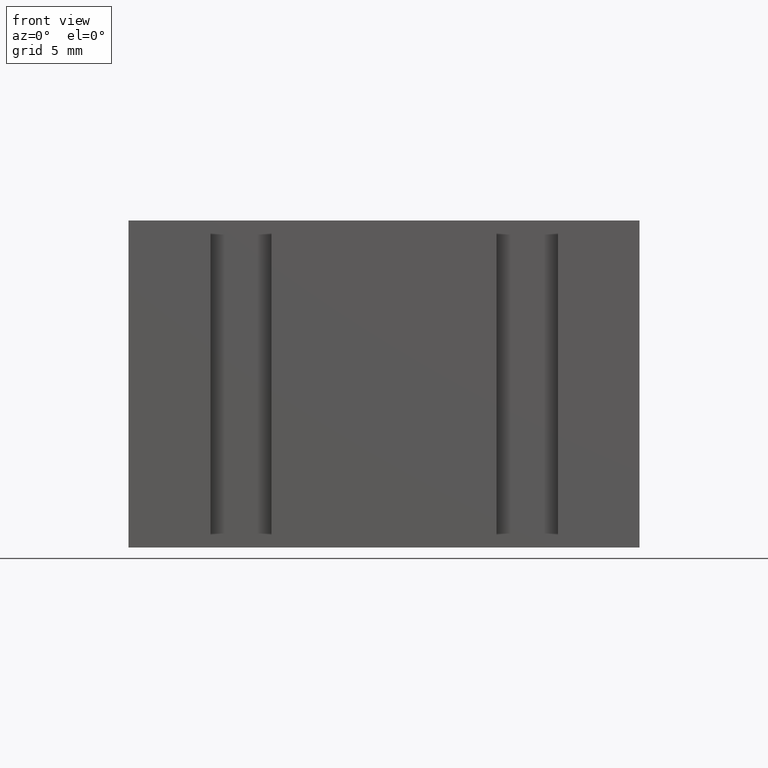
[diagram: clean part render]
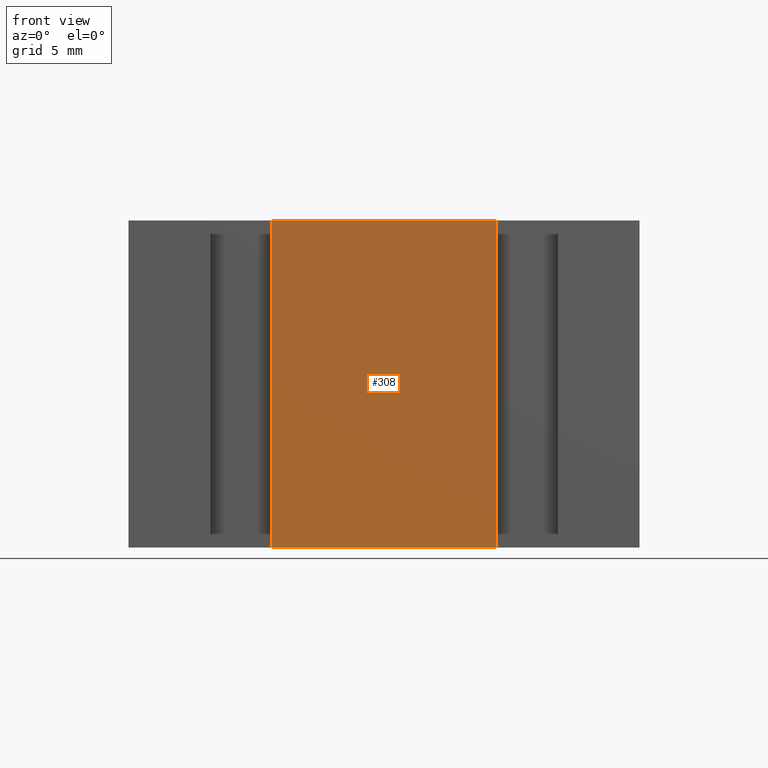
[diagram: same view with one face highlighted and labeled with its STEP entity id]
A machine part, front view. The second image highlights one B-rep face of the part: STEP entity #308.
In plain terms, the highlighted planar face has unit normal (0, -1, 0).
Its self-contained STEP definition (entity closure, byte-faithful):
#22=FACE_OUTER_BOUND('',#38,.T.);
#38=EDGE_LOOP('',(#230,#231,#232,#233));
#55=LINE('',#449,#97);
#70=LINE('',#478,#112);
#71=LINE('',#481,#113);
#72=LINE('',#482,#114);
#97=VECTOR('',#368,10.);
#112=VECTOR('',#389,10.);
#113=VECTOR('',#392,10.);
#114=VECTOR('',#393,10.);
#139=VERTEX_POINT('',#446);
#140=VERTEX_POINT('',#448);
#151=VERTEX_POINT('',#476);
#152=VERTEX_POINT('',#480);
#167=EDGE_CURVE('',#140,#139,#55,.T.);
#182=EDGE_CURVE('',#151,#139,#70,.T.);
#183=EDGE_CURVE('',#151,#152,#71,.T.);
#184=EDGE_CURVE('',#152,#140,#72,.T.);
#230=ORIENTED_EDGE('',*,*,#183,.T.);
#231=ORIENTED_EDGE('',*,*,#184,.T.);
#232=ORIENTED_EDGE('',*,*,#167,.T.);
#233=ORIENTED_EDGE('',*,*,#182,.F.);
#292=PLANE('',#347);
#308=ADVANCED_FACE('',(#22),#292,.T.);
#347=AXIS2_PLACEMENT_3D('',#479,#390,#391);
#368=DIRECTION('',(1.,0.,0.));
#389=DIRECTION('',(0.,0.,-1.));
#390=DIRECTION('center_axis',(0.,-1.,0.));
#391=DIRECTION('ref_axis',(0.,0.,-1.));
#392=DIRECTION('',(-1.,0.,0.));
#393=DIRECTION('',(0.,0.,-1.));
#446=CARTESIAN_POINT('',(5.5,0.,-8.));
#448=CARTESIAN_POINT('',(-5.5,0.,-8.));
#449=CARTESIAN_POINT('',(5.5,0.,-8.));
#476=CARTESIAN_POINT('',(5.5,0.,8.));
#478=CARTESIAN_POINT('',(5.5,0.,0.));
#479=CARTESIAN_POINT('Origin',(5.5,0.,0.));
#480=CARTESIAN_POINT('',(-5.5,0.,8.));
#481=CARTESIAN_POINT('',(5.5,0.,8.));
#482=CARTESIAN_POINT('',(-5.5,0.,0.));